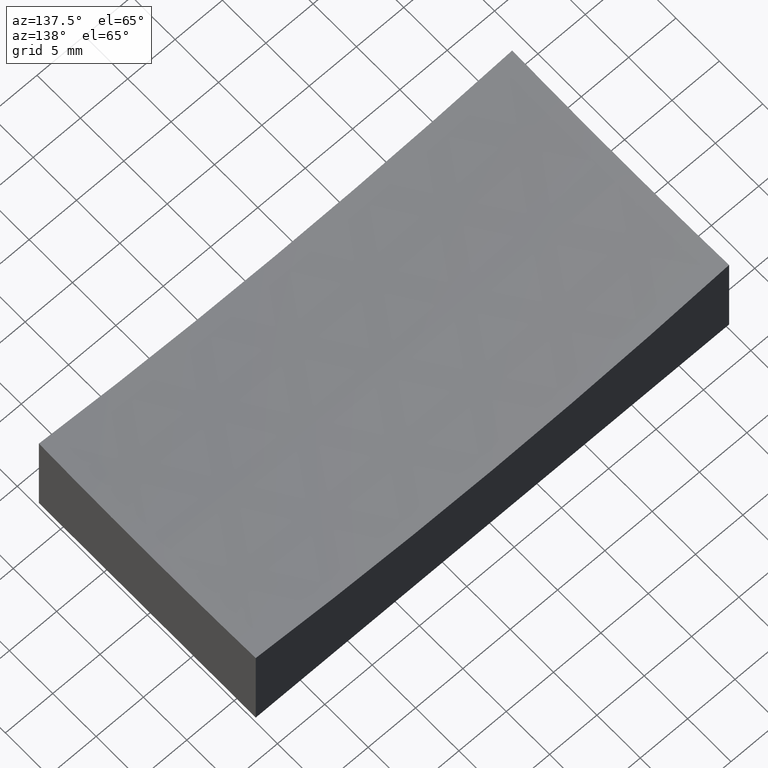
[diagram: clean part render]
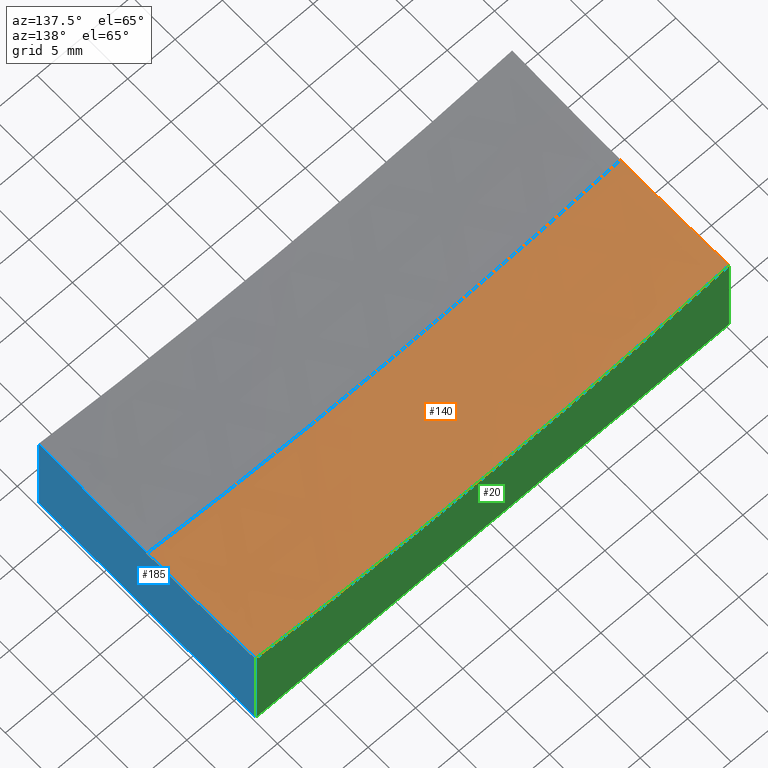
[diagram: same view with three faces highlighted in distinct colors, each labeled with its STEP entity id]
A machine part, auxiliary view with three faces highlighted in distinct colors.
Their STEP definitions:

[orange] entity #140 — the highlighted spherical surface has radius 200 mm.
#2 = SPHERICAL_SURFACE ( 'NONE', #222, 200.0000000000000000 ) ;
#8 = VERTEX_POINT ( 'NONE', #206 ) ;
#9 = ORIENTED_EDGE ( 'NONE', *, *, #72, .T. ) ;
#15 = CARTESIAN_POINT ( 'NONE',  ( -25.00000000000000000, -3.061616997868383043E-15, 10.56865167015569362 ) ) ;
#17 = DIRECTION ( 'NONE',  ( 0.000000000000000000, -1.000000000000000000, -0.000000000000000000 ) ) ;
#23 = AXIS2_PLACEMENT_3D ( 'NONE', #96, #154, #195 ) ;
#26 = CIRCLE ( 'NONE', #180, 200.0000000000000000 ) ;
#31 = DIRECTION ( 'NONE',  ( 1.000000000000000000, 1.224646799147353207E-16, 0.000000000000000000 ) ) ;
#40 = CARTESIAN_POINT ( 'NONE',  ( 25.00000000000000355, 12.50000000000000000, 10.96275602806423599 ) ) ;
#45 = AXIS2_PLACEMENT_3D ( 'NONE', #94, #117, #135 ) ;
#47 = ORIENTED_EDGE ( 'NONE', *, *, #238, .T. ) ;
#62 = EDGE_CURVE ( 'NONE', #8, #69, #159, .T. ) ;
#69 = VERTEX_POINT ( 'NONE', #40 ) ;
#70 = DIRECTION ( 'NONE',  ( -0.000000000000000000, 1.000000000000000000, -0.000000000000000000 ) ) ;
#71 = DIRECTION ( 'NONE',  ( 1.224646799147353207E-16, -1.000000000000000000, -2.389495266532727716E-35 ) ) ;
#72 = EDGE_CURVE ( 'NONE', #107, #126, #26, .T. ) ;
#77 = FACE_OUTER_BOUND ( 'NONE', #85, .T. ) ;
#85 = EDGE_LOOP ( 'NONE', ( #201, #9, #186, #221, #47 ) ) ;
#87 = CIRCLE ( 'NONE', #121, 199.6089927833914146 ) ;
#93 = CIRCLE ( 'NONE', #45, 200.0000000000000000 ) ;
#94 = CARTESIAN_POINT ( 'NONE',  ( 0.000000000000000000, 0.000000000000000000, 209.0000000000000284 ) ) ;
#96 = CARTESIAN_POINT ( 'NONE',  ( -25.00000000000000000, -3.469446951953614189E-15, 209.0000000000000284 ) ) ;
#107 = VERTEX_POINT ( 'NONE', #15 ) ;
#110 = EDGE_CURVE ( 'NONE', #8, #126, #93, .T. ) ;
#114 = CARTESIAN_POINT ( 'NONE',  ( 0.000000000000000000, 0.000000000000000000, 209.0000000000000284 ) ) ;
#117 = DIRECTION ( 'NONE',  ( 0.000000000000000000, 1.000000000000000000, -0.000000000000000000 ) ) ;
#121 = AXIS2_PLACEMENT_3D ( 'NONE', #188, #70, #205 ) ;
#122 = CARTESIAN_POINT ( 'NONE',  ( 0.000000000000000000, 0.000000000000000000, 209.0000000000000284 ) ) ;
#126 = VERTEX_POINT ( 'NONE', #251 ) ;
#135 = DIRECTION ( 'NONE',  ( 0.000000000000000000, 0.000000000000000000, 1.000000000000000000 ) ) ;
#140 = ADVANCED_FACE ( 'NONE', ( #77 ), #2, .F. ) ;
#154 = DIRECTION ( 'NONE',  ( -1.000000000000000000, -1.387778780781445676E-16, 0.000000000000000000 ) ) ;
#159 = CIRCLE ( 'NONE', #163, 198.4313483298443259 ) ;
#163 = AXIS2_PLACEMENT_3D ( 'NONE', #200, #164, #239 ) ;
#164 = DIRECTION ( 'NONE',  ( 1.000000000000000000, -2.775557561562891351E-16, -0.000000000000000000 ) ) ;
#180 = AXIS2_PLACEMENT_3D ( 'NONE', #122, #71, #31 ) ;
#186 = ORIENTED_EDGE ( 'NONE', *, *, #110, .F. ) ;
#188 = CARTESIAN_POINT ( 'NONE',  ( 0.000000000000000000, 12.50000000000000000, 209.0000000000000284 ) ) ;
#195 = DIRECTION ( 'NONE',  ( -1.398749534750525041E-16, 1.000000000000000000, 0.000000000000000000 ) ) ;
#200 = CARTESIAN_POINT ( 'NONE',  ( 25.00000000000000000, -6.938893903907228378E-15, 209.0000000000000284 ) ) ;
#201 = ORIENTED_EDGE ( 'NONE', *, *, #203, .T. ) ;
#203 = EDGE_CURVE ( 'NONE', #224, #107, #244, .T. ) ;
#205 = DIRECTION ( 'NONE',  ( 0.000000000000000000, 0.000000000000000000, -1.000000000000000000 ) ) ;
#206 = CARTESIAN_POINT ( 'NONE',  ( 25.00000000000000000, 0.000000000000000000, 10.56865167015569362 ) ) ;
#212 = CARTESIAN_POINT ( 'NONE',  ( -25.00000000000000000, 12.50000000000000000, 10.96275602806423599 ) ) ;
#221 = ORIENTED_EDGE ( 'NONE', *, *, #62, .T. ) ;
#222 = AXIS2_PLACEMENT_3D ( 'NONE', #114, #17, #231 ) ;
#224 = VERTEX_POINT ( 'NONE', #212 ) ;
#231 = DIRECTION ( 'NONE',  ( 1.000000000000000000, 0.000000000000000000, 0.000000000000000000 ) ) ;
#238 = EDGE_CURVE ( 'NONE', #69, #224, #87, .T. ) ;
#239 = DIRECTION ( 'NONE',  ( -2.797499069501050082E-16, -1.000000000000000000, 0.000000000000000000 ) ) ;
#244 = CIRCLE ( 'NONE', #23, 198.4313483298443259 ) ;
#251 = CARTESIAN_POINT ( 'NONE',  ( 1.220744457234245953E-14, 0.000000000000000000, 9.000000000000007105 ) ) ;

[blue] entity #185 — the highlighted planar face has unit normal (-1, 0, 0).
#4 = CIRCLE ( 'NONE', #210, 198.4313483298443259 ) ;
#8 = VERTEX_POINT ( 'NONE', #206 ) ;
#18 = PLANE ( 'NONE',  #148 ) ;
#40 = CARTESIAN_POINT ( 'NONE',  ( 25.00000000000000355, 12.50000000000000000, 10.96275602806423599 ) ) ;
#50 = DIRECTION ( 'NONE',  ( -0.000000000000000000, -0.000000000000000000, -1.000000000000000000 ) ) ;
#51 = DIRECTION ( 'NONE',  ( -2.797499069501050082E-16, -1.000000000000000000, 0.000000000000000000 ) ) ;
#53 = CARTESIAN_POINT ( 'NONE',  ( 25.00000000000000000, -6.938893903907228378E-15, 209.0000000000000284 ) ) ;
#55 = CARTESIAN_POINT ( 'NONE',  ( 25.00000000000000355, 12.50000000000000000, 15.00000000000000000 ) ) ;
#56 = VERTEX_POINT ( 'NONE', #198 ) ;
#59 = EDGE_CURVE ( 'NONE', #235, #128, #101, .T. ) ;
#62 = EDGE_CURVE ( 'NONE', #8, #69, #159, .T. ) ;
#69 = VERTEX_POINT ( 'NONE', #40 ) ;
#73 = LINE ( 'NONE', #227, #236 ) ;
#81 = CARTESIAN_POINT ( 'NONE',  ( 24.99999999999999645, -12.50000000000000000, 15.00000000000000000 ) ) ;
#88 = ORIENTED_EDGE ( 'NONE', *, *, #59, .T. ) ;
#92 = VECTOR ( 'NONE', #179, 1000.000000000000000 ) ;
#97 = DIRECTION ( 'NONE',  ( -2.775557561562891351E-16, -1.000000000000000000, 0.000000000000000000 ) ) ;
#98 = DIRECTION ( 'NONE',  ( 2.775557561562891351E-16, 1.000000000000000000, -0.000000000000000000 ) ) ;
#101 = LINE ( 'NONE', #81, #92 ) ;
#112 = VECTOR ( 'NONE', #50, 1000.000000000000000 ) ;
#128 = VERTEX_POINT ( 'NONE', #153 ) ;
#129 = EDGE_CURVE ( 'NONE', #128, #56, #73, .T. ) ;
#134 = DIRECTION ( 'NONE',  ( -1.000000000000000000, 2.775557561562891351E-16, 0.000000000000000000 ) ) ;
#147 = ORIENTED_EDGE ( 'NONE', *, *, #160, .F. ) ;
#148 = AXIS2_PLACEMENT_3D ( 'NONE', #55, #134, #97 ) ;
#152 = ORIENTED_EDGE ( 'NONE', *, *, #62, .F. ) ;
#153 = CARTESIAN_POINT ( 'NONE',  ( 24.99999999999999645, -12.50000000000000000, 0.000000000000000000 ) ) ;
#159 = CIRCLE ( 'NONE', #163, 198.4313483298443259 ) ;
#160 = EDGE_CURVE ( 'NONE', #69, #56, #228, .T. ) ;
#163 = AXIS2_PLACEMENT_3D ( 'NONE', #200, #164, #239 ) ;
#164 = DIRECTION ( 'NONE',  ( 1.000000000000000000, -2.775557561562891351E-16, -0.000000000000000000 ) ) ;
#167 = EDGE_CURVE ( 'NONE', #235, #8, #4, .T. ) ;
#168 = EDGE_LOOP ( 'NONE', ( #242, #88, #225, #147, #152 ) ) ;
#176 = CARTESIAN_POINT ( 'NONE',  ( 24.99999999999999645, -12.50000000000000000, 10.96275602806423599 ) ) ;
#179 = DIRECTION ( 'NONE',  ( -0.000000000000000000, -0.000000000000000000, -1.000000000000000000 ) ) ;
#185 = ADVANCED_FACE ( 'NONE', ( #215 ), #18, .F. ) ;
#198 = CARTESIAN_POINT ( 'NONE',  ( 25.00000000000000355, 12.50000000000000000, 0.000000000000000000 ) ) ;
#200 = CARTESIAN_POINT ( 'NONE',  ( 25.00000000000000000, -6.938893903907228378E-15, 209.0000000000000284 ) ) ;
#206 = CARTESIAN_POINT ( 'NONE',  ( 25.00000000000000000, 0.000000000000000000, 10.56865167015569362 ) ) ;
#207 = DIRECTION ( 'NONE',  ( 1.000000000000000000, -2.775557561562891351E-16, -0.000000000000000000 ) ) ;
#210 = AXIS2_PLACEMENT_3D ( 'NONE', #53, #207, #51 ) ;
#215 = FACE_OUTER_BOUND ( 'NONE', #168, .T. ) ;
#225 = ORIENTED_EDGE ( 'NONE', *, *, #129, .T. ) ;
#227 = CARTESIAN_POINT ( 'NONE',  ( 25.00000000000000355, 12.50000000000000000, 0.000000000000000000 ) ) ;
#228 = LINE ( 'NONE', #250, #112 ) ;
#235 = VERTEX_POINT ( 'NONE', #176 ) ;
#236 = VECTOR ( 'NONE', #98, 1000.000000000000000 ) ;
#239 = DIRECTION ( 'NONE',  ( -2.797499069501050082E-16, -1.000000000000000000, 0.000000000000000000 ) ) ;
#242 = ORIENTED_EDGE ( 'NONE', *, *, #167, .F. ) ;
#250 = CARTESIAN_POINT ( 'NONE',  ( 25.00000000000000355, 12.50000000000000000, 15.00000000000000000 ) ) ;

[green] entity #20 — the highlighted planar face has unit normal (0, -1, 0).
#19 = DIRECTION ( 'NONE',  ( -1.000000000000000000, -0.000000000000000000, -0.000000000000000000 ) ) ;
#20 = ADVANCED_FACE ( 'NONE', ( #143 ), #139, .F. ) ;
#29 = ORIENTED_EDGE ( 'NONE', *, *, #160, .T. ) ;
#34 = LINE ( 'NONE', #116, #108 ) ;
#40 = CARTESIAN_POINT ( 'NONE',  ( 25.00000000000000355, 12.50000000000000000, 10.96275602806423599 ) ) ;
#50 = DIRECTION ( 'NONE',  ( -0.000000000000000000, -0.000000000000000000, -1.000000000000000000 ) ) ;
#56 = VERTEX_POINT ( 'NONE', #198 ) ;
#60 = DIRECTION ( 'NONE',  ( 0.000000000000000000, -1.000000000000000000, 0.000000000000000000 ) ) ;
#69 = VERTEX_POINT ( 'NONE', #40 ) ;
#70 = DIRECTION ( 'NONE',  ( -0.000000000000000000, 1.000000000000000000, -0.000000000000000000 ) ) ;
#75 = DIRECTION ( 'NONE',  ( -0.000000000000000000, -0.000000000000000000, -1.000000000000000000 ) ) ;
#87 = CIRCLE ( 'NONE', #121, 199.6089927833914146 ) ;
#89 = ORIENTED_EDGE ( 'NONE', *, *, #199, .F. ) ;
#102 = VECTOR ( 'NONE', #75, 1000.000000000000000 ) ;
#108 = VECTOR ( 'NONE', #19, 1000.000000000000000 ) ;
#112 = VECTOR ( 'NONE', #50, 1000.000000000000000 ) ;
#116 = CARTESIAN_POINT ( 'NONE',  ( -25.00000000000000000, 12.50000000000000000, 0.000000000000000000 ) ) ;
#121 = AXIS2_PLACEMENT_3D ( 'NONE', #188, #70, #205 ) ;
#123 = VERTEX_POINT ( 'NONE', #174 ) ;
#132 = ORIENTED_EDGE ( 'NONE', *, *, #238, .F. ) ;
#138 = CARTESIAN_POINT ( 'NONE',  ( -25.00000000000000000, 12.50000000000000000, 15.00000000000000000 ) ) ;
#139 = PLANE ( 'NONE',  #232 ) ;
#143 = FACE_OUTER_BOUND ( 'NONE', #184, .T. ) ;
#160 = EDGE_CURVE ( 'NONE', #69, #56, #228, .T. ) ;
#165 = ORIENTED_EDGE ( 'NONE', *, *, #226, .T. ) ;
#174 = CARTESIAN_POINT ( 'NONE',  ( -25.00000000000000000, 12.50000000000000000, 0.000000000000000000 ) ) ;
#184 = EDGE_LOOP ( 'NONE', ( #132, #29, #165, #89 ) ) ;
#188 = CARTESIAN_POINT ( 'NONE',  ( 0.000000000000000000, 12.50000000000000000, 209.0000000000000284 ) ) ;
#197 = LINE ( 'NONE', #138, #102 ) ;
#198 = CARTESIAN_POINT ( 'NONE',  ( 25.00000000000000355, 12.50000000000000000, 0.000000000000000000 ) ) ;
#199 = EDGE_CURVE ( 'NONE', #224, #123, #197, .T. ) ;
#205 = DIRECTION ( 'NONE',  ( 0.000000000000000000, 0.000000000000000000, -1.000000000000000000 ) ) ;
#212 = CARTESIAN_POINT ( 'NONE',  ( -25.00000000000000000, 12.50000000000000000, 10.96275602806423599 ) ) ;
#217 = CARTESIAN_POINT ( 'NONE',  ( -25.00000000000000000, 12.50000000000000000, 15.00000000000000000 ) ) ;
#224 = VERTEX_POINT ( 'NONE', #212 ) ;
#226 = EDGE_CURVE ( 'NONE', #56, #123, #34, .T. ) ;
#228 = LINE ( 'NONE', #250, #112 ) ;
#232 = AXIS2_PLACEMENT_3D ( 'NONE', #217, #60, #234 ) ;
#234 = DIRECTION ( 'NONE',  ( 0.000000000000000000, -0.000000000000000000, -1.000000000000000000 ) ) ;
#238 = EDGE_CURVE ( 'NONE', #69, #224, #87, .T. ) ;
#250 = CARTESIAN_POINT ( 'NONE',  ( 25.00000000000000355, 12.50000000000000000, 15.00000000000000000 ) ) ;